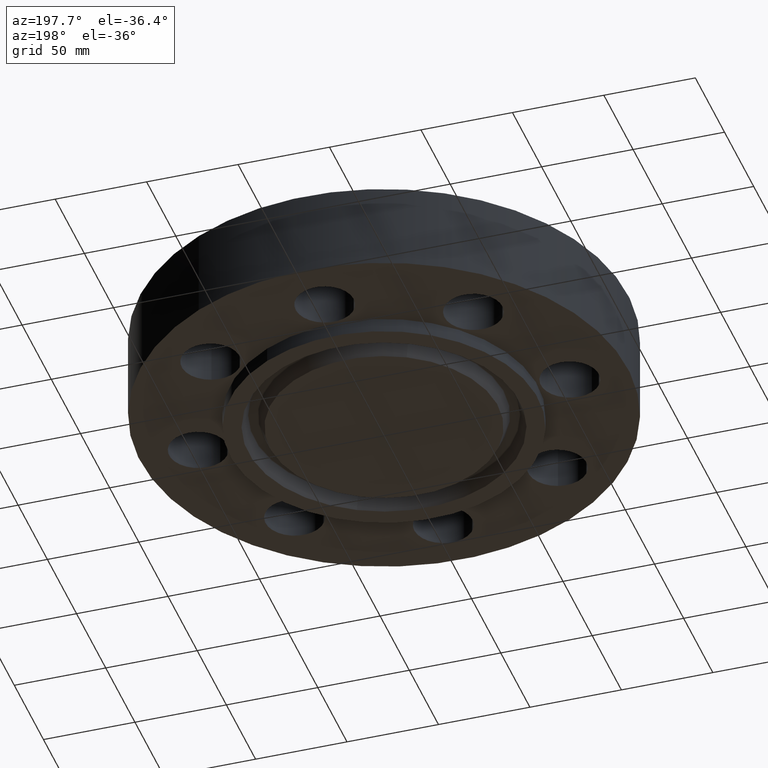
[diagram: clean part render]
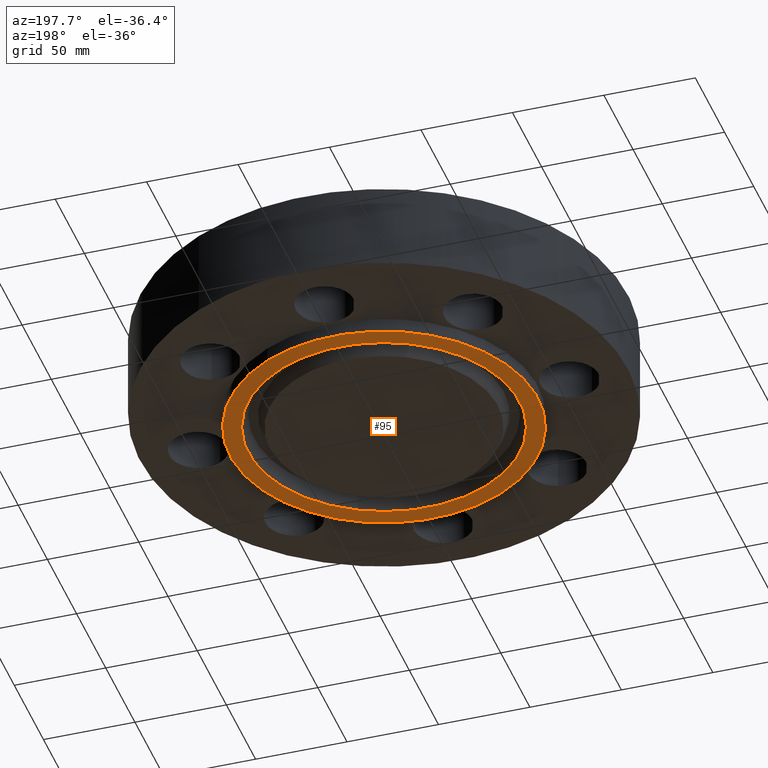
[diagram: same view with one face highlighted and labeled with its STEP entity id]
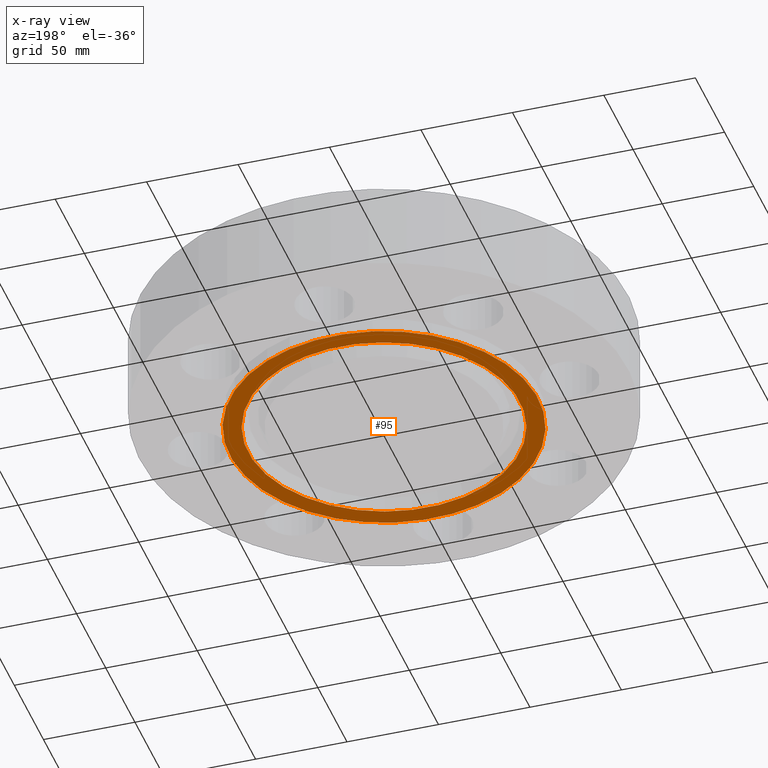
[diagram: x-ray of the same camera — body ghosted, the highlighted face saturated]
A machine part, auxiliary view. The second image highlights one B-rep face of the part: STEP entity #95.
The next image is the same camera in x-ray: the body ghosted, the highlighted face saturated — about 0% of this face is hidden behind the body in this view.
In plain terms, the highlighted planar face has unit normal (0, 0, -1).
Its self-contained STEP definition (entity closure, byte-faithful):
#38=AXIS2_PLACEMENT_3D('Plane Axis2P3D',#35,#36,#37) ;
#61=AXIS2_PLACEMENT_3D('Circle Axis2P3D',#59,#60,$) ;
#70=AXIS2_PLACEMENT_3D('Circle Axis2P3D',#68,#69,$) ;
#79=AXIS2_PLACEMENT_3D('Circle Axis2P3D',#77,#78,$) ;
#88=AXIS2_PLACEMENT_3D('Circle Axis2P3D',#86,#87,$) ;
#35=CARTESIAN_POINT('Axis2P3D Location',(0.,0.,-0.313000000001)) ;
#59=CARTESIAN_POINT('Axis2P3D Location',(0.,0.,-0.313000000001)) ;
#63=CARTESIAN_POINT('Vertex',(1.58809709663,2.90699223627,-0.313000000001)) ;
#65=CARTESIAN_POINT('Vertex',(-1.58809709663,-2.90699223627,-0.313000000001)) ;
#68=CARTESIAN_POINT('Axis2P3D Location',(0.,0.,-0.313000000001)) ;
#77=CARTESIAN_POINT('Axis2P3D Location',(4.19611851827E-016,2.79741234551E-016,-0.313000000001)) ;
#81=CARTESIAN_POINT('Vertex',(1.40088142381,-2.56429624585,-0.313000000001)) ;
#83=CARTESIAN_POINT('Vertex',(-1.40088142381,2.56429624585,-0.313000000001)) ;
#86=CARTESIAN_POINT('Axis2P3D Location',(2.09805925913E-016,5.59482469102E-016,-0.313000000001)) ;
#36=DIRECTION('Axis2P3D Direction',(0.,0.,-0.0393700787402)) ;
#37=DIRECTION('Axis2P3D XDirection',(0.0393700787402,0.,0.)) ;
#60=DIRECTION('Axis2P3D Direction',(0.,0.,-0.0393700787402)) ;
#69=DIRECTION('Axis2P3D Direction',(0.,0.,-0.0393700787402)) ;
#78=DIRECTION('Axis2P3D Direction',(0.,0.,-0.0393700787402)) ;
#87=DIRECTION('Axis2P3D Direction',(0.,0.,-0.0393700787402)) ;
#74=ORIENTED_EDGE('',*,*,#67,.T.) ;
#75=ORIENTED_EDGE('',*,*,#72,.T.) ;
#92=ORIENTED_EDGE('',*,*,#85,.F.) ;
#93=ORIENTED_EDGE('',*,*,#90,.F.) ;
#94=FACE_BOUND('',#91,.T.) ;
#95=ADVANCED_FACE('PartBody',(#76,#94),#39,.T.) ;
#62=CIRCLE('generated circle',#61,3.31250000001) ;
#71=CIRCLE('generated circle',#70,3.31250000001) ;
#80=CIRCLE('generated circle',#79,2.92200000001) ;
#89=CIRCLE('generated circle',#88,2.92200000001) ;
#67=EDGE_CURVE('',#64,#66,#62,.T.) ;
#72=EDGE_CURVE('',#66,#64,#71,.T.) ;
#85=EDGE_CURVE('',#82,#84,#80,.T.) ;
#90=EDGE_CURVE('',#84,#82,#89,.T.) ;
#73=EDGE_LOOP('',(#74,#75)) ;
#91=EDGE_LOOP('',(#92,#93)) ;
#76=FACE_OUTER_BOUND('',#73,.T.) ;
#39=PLANE('',#38) ;
#64=VERTEX_POINT('',#63) ;
#66=VERTEX_POINT('',#65) ;
#82=VERTEX_POINT('',#81) ;
#84=VERTEX_POINT('',#83) ;